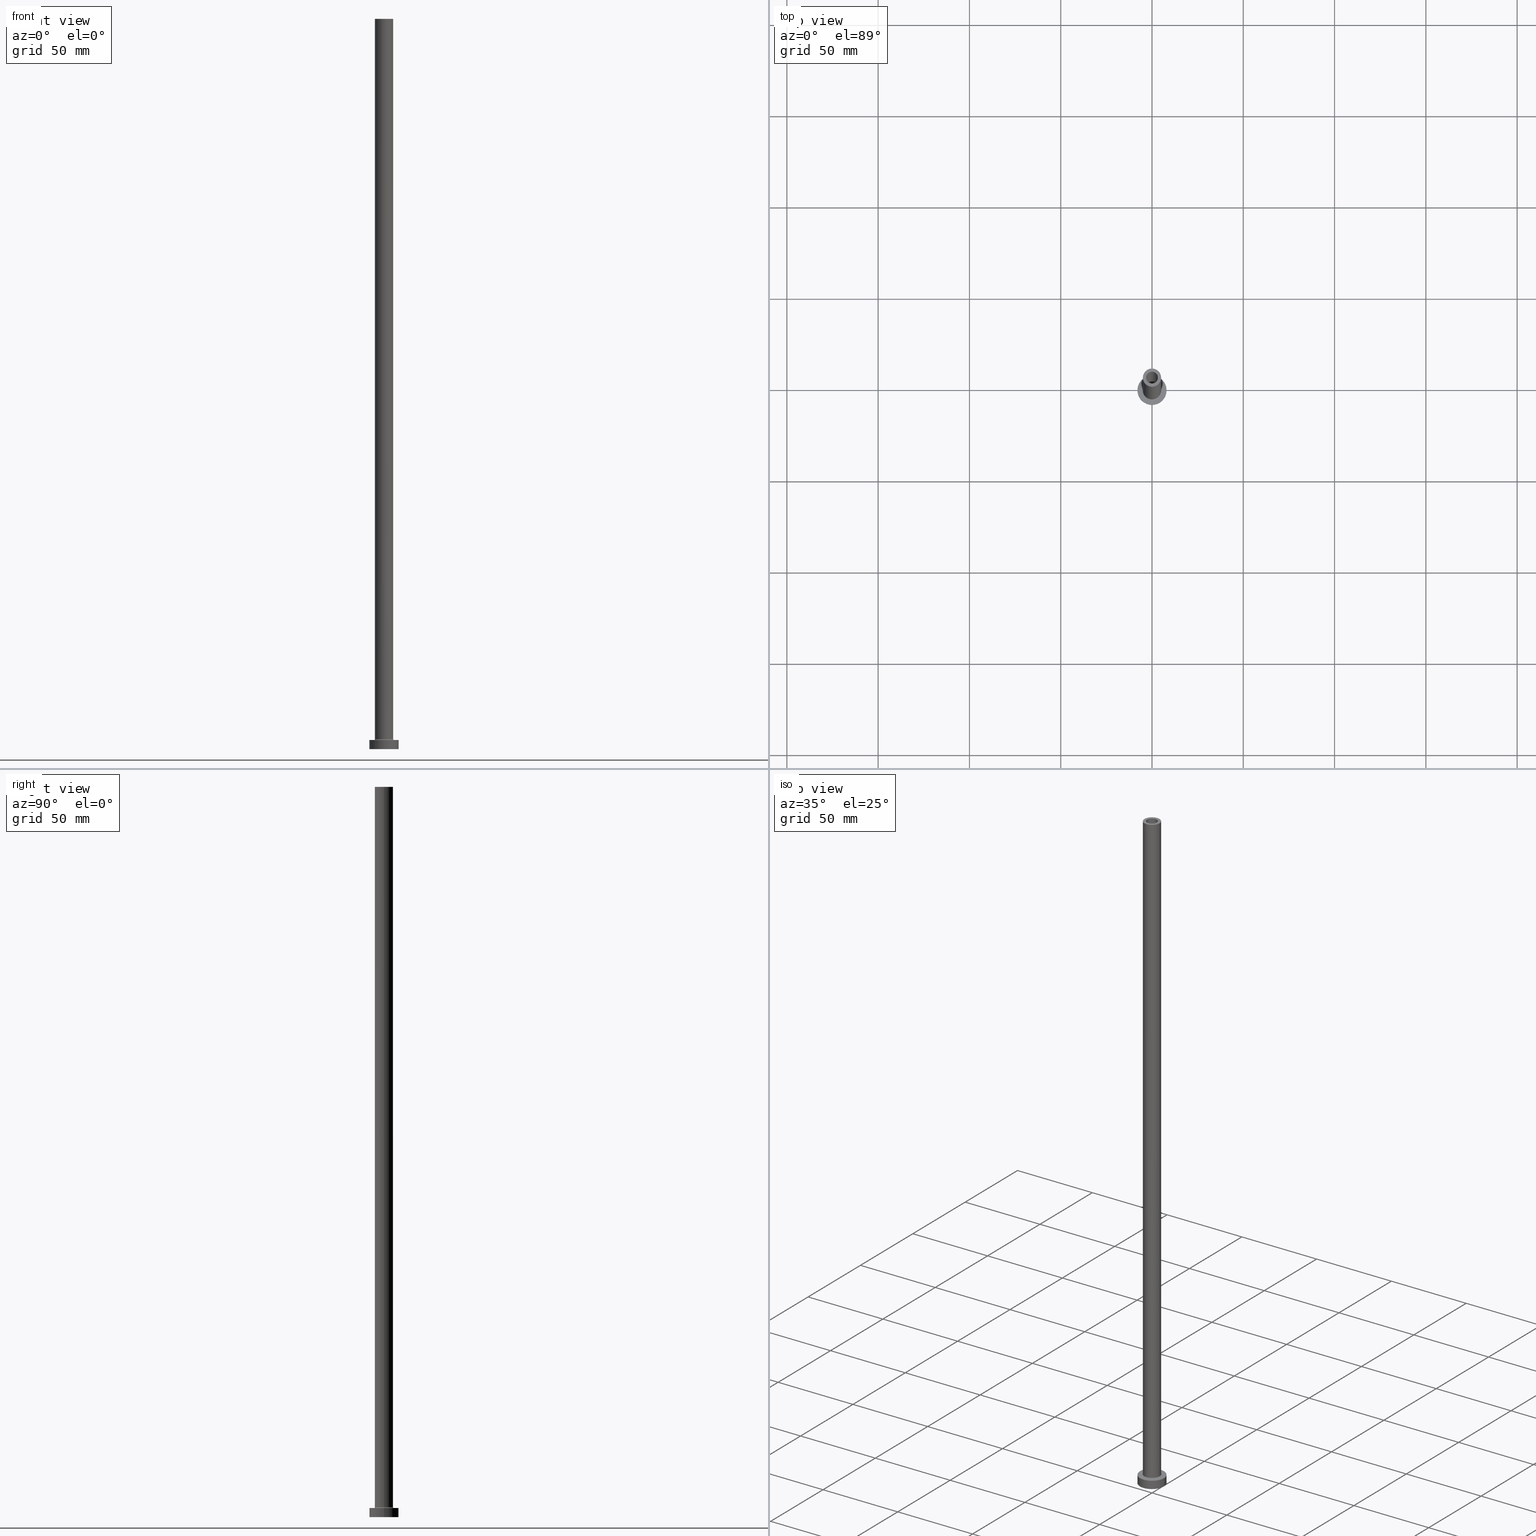
[diagram: canonical four-view strip — front | top / right | iso, engineering-drawing reading convention]
A machine part, canonical four-view strip (front | top / right | iso — engineering-drawing reading convention). The complete STEP part file that produces these views, byte-faithful:
ISO-10303-21;
HEADER;
FILE_DESCRIPTION (( 'STEP AP203' ),
    '1' );
FILE_NAME ('01eb.STEP',
    '2023-02-13T14:01:16',
    ( '' ),
    ( '' ),
    'SwSTEP 2.0',
    'SolidWorks 2019',
    '' );
FILE_SCHEMA (( 'CONFIG_CONTROL_DESIGN' ));
ENDSEC;

DATA;
#1 = CARTESIAN_POINT ( 'NONE',  ( 0.000000000000000000, 0.000000000000000000, 0.000000000000000000 ) ) ;
#2 = AXIS2_PLACEMENT_3D ( 'NONE', #354, #359, #35 ) ;
#3 = VECTOR ( 'NONE', #53, 1000.000000000000000 ) ;
#4 = AXIS2_PLACEMENT_3D ( 'NONE', #100, #396, #430 ) ;
#5 = CARTESIAN_POINT ( 'NONE',  ( 5.500000000000000000, 0.000000000000000000, 5.500000000000005329 ) ) ;
#6 = CARTESIAN_POINT ( 'NONE',  ( -5.000000000000000000, 0.000000000000000000, 400.0000000000000000 ) ) ;
#7 = EDGE_CURVE ( 'NONE', #202, #420, #447, .T. ) ;
#8 = DIRECTION ( 'NONE',  ( 0.000000000000000000, 0.000000000000000000, 1.000000000000000000 ) ) ;
#9 = DIRECTION ( 'NONE',  ( -1.000000000000000000, 0.000000000000000000, 0.000000000000000000 ) ) ;
#10 = CALENDAR_DATE ( 2023, 13, 2 ) ;
#11 = AXIS2_PLACEMENT_3D ( 'NONE', #135, #248, #389 ) ;
#12 = FACE_OUTER_BOUND ( 'NONE', #207, .T. ) ;
#13 = APPROVAL_STATUS ( 'not_yet_approved' ) ;
#14 = DIRECTION ( 'NONE',  ( 1.000000000000000000, 0.000000000000000000, 0.000000000000000000 ) ) ;
#15 = SHAPE_DEFINITION_REPRESENTATION ( #16, #249 ) ;
#16 = PRODUCT_DEFINITION_SHAPE ( 'NONE', 'NONE',  #126 ) ;
#17 = VERTEX_POINT ( 'NONE', #269 ) ;
#18 = EDGE_CURVE ( 'NONE', #275, #97, #455, .T. ) ;
#19 = EDGE_LOOP ( 'NONE', ( #410, #424 ) ) ;
#20 = ORIENTED_EDGE ( 'NONE', *, *, #18, .T. ) ;
#21 = AXIS2_PLACEMENT_3D ( 'NONE', #418, #251, #201 ) ;
#22 = ORIENTED_EDGE ( 'NONE', *, *, #178, .F. ) ;
#23 = EDGE_CURVE ( 'NONE', #300, #55, #258, .T. ) ;
#24 = CARTESIAN_POINT ( 'NONE',  ( 0.000000000000000000, 0.000000000000000000, 400.0000000000000000 ) ) ;
#25 = ORIENTED_EDGE ( 'NONE', *, *, #209, .F. ) ;
#26 = APPROVAL ( #13, 'NEUR�EN�' ) ;
#27 = DIRECTION ( 'NONE',  ( -0.000000000000000000, -0.000000000000000000, -1.000000000000000000 ) ) ;
#28 = ORIENTED_EDGE ( 'NONE', *, *, #431, .F. ) ;
#29 = FACE_BOUND ( 'NONE', #169, .T. ) ;
#30 = AXIS2_PLACEMENT_3D ( 'NONE', #82, #116, #399 ) ;
#31 = ORIENTED_EDGE ( 'NONE', *, *, #18, .F. ) ;
#32 = DIRECTION ( 'NONE',  ( -1.000000000000000000, 0.000000000000000000, 0.000000000000000000 ) ) ;
#33 = CARTESIAN_POINT ( 'NONE',  ( -3.250000000000000444, 0.000000000000000000, 400.0000000000000000 ) ) ;
#34 = ORIENTED_EDGE ( 'NONE', *, *, #305, .T. ) ;
#35 = DIRECTION ( 'NONE',  ( 1.000000000000000000, 0.000000000000000000, 0.000000000000000000 ) ) ;
#36 = DIRECTION ( 'NONE',  ( -1.000000000000000000, 0.000000000000000000, 0.000000000000000000 ) ) ;
#37 = EDGE_CURVE ( 'NONE', #374, #275, #232, .T. ) ;
#38 = AXIS2_PLACEMENT_3D ( 'NONE', #255, #220, #398 ) ;
#39 = DIRECTION ( 'NONE',  ( -0.000000000000000000, -0.000000000000000000, -1.000000000000000000 ) ) ;
#40 = CC_DESIGN_PERSON_AND_ORGANIZATION_ASSIGNMENT ( #184, #109, ( #388 ) ) ;
#41 = CARTESIAN_POINT ( 'NONE',  ( 0.000000000000000000, 0.000000000000000000, 400.0000000000000000 ) ) ;
#42 = CARTESIAN_POINT ( 'NONE',  ( 3.399999999999999911, 4.163799117101000559E-16, 0.000000000000000000 ) ) ;
#43 = AXIS2_PLACEMENT_3D ( 'NONE', #104, #181, #214 ) ;
#44 = PERSON_AND_ORGANIZATION ( #381, #444 ) ;
#45 = CC_DESIGN_APPROVAL ( #328, ( #388 ) ) ;
#46 = ADVANCED_FACE ( 'NONE', ( #51 ), #445, .F. ) ;
#47 = PERSON_AND_ORGANIZATION_ROLE ( 'creator' ) ;
#48 = ADVANCED_FACE ( 'NONE', ( #274 ), #390, .F. ) ;
#49 = SECURITY_CLASSIFICATION_LEVEL ( 'unclassified' ) ;
#50 = AXIS2_PLACEMENT_3D ( 'NONE', #283, #76, #252 ) ;
#51 = FACE_OUTER_BOUND ( 'NONE', #456, .T. ) ;
#52 = APPROVAL_ROLE ( '' ) ;
#53 = DIRECTION ( 'NONE',  ( 0.000000000000000000, 0.000000000000000000, -1.000000000000000000 ) ) ;
#54 = DIRECTION ( 'NONE',  ( 1.000000000000000000, 0.000000000000000000, 0.000000000000000000 ) ) ;
#55 = VERTEX_POINT ( 'NONE', #96 ) ;
#56 = LOCAL_TIME ( 15, 1, 16.00000000000000000, #77 ) ;
#57 = CIRCLE ( 'NONE', #173, 3.250000000000000444 ) ;
#58 = CC_DESIGN_APPROVAL ( #26, ( #222 ) ) ;
#59 = ORIENTED_EDGE ( 'NONE', *, *, #190, .F. ) ;
#60 = ORIENTED_EDGE ( 'NONE', *, *, #311, .T. ) ;
#61 = DIRECTION ( 'NONE',  ( 1.000000000000000000, 0.000000000000000000, 0.000000000000000000 ) ) ;
#62 = LINE ( 'NONE', #247, #83 ) ;
#63 = ORIENTED_EDGE ( 'NONE', *, *, #120, .T. ) ;
#64 = CARTESIAN_POINT ( 'NONE',  ( 0.000000000000000000, 0.000000000000000000, 364.6166522241370558 ) ) ;
#65 = LINE ( 'NONE', #174, #386 ) ;
#66 = ORIENTED_EDGE ( 'NONE', *, *, #67, .T. ) ;
#67 = EDGE_CURVE ( 'NONE', #310, #377, #62, .T. ) ;
#68 = FACE_OUTER_BOUND ( 'NONE', #403, .T. ) ;
#69 = VECTOR ( 'NONE', #452, 1000.000000000000000 ) ;
#70 = VERTEX_POINT ( 'NONE', #288 ) ;
#71 = DIRECTION ( 'NONE',  ( 1.000000000000000000, 0.000000000000000000, -0.000000000000000000 ) ) ;
#72 = DIRECTION ( 'NONE',  ( 0.000000000000000000, -1.000000000000000000, 0.000000000000000000 ) ) ;
#73 = ADVANCED_FACE ( 'NONE', ( #29, #166 ), #429, .T. ) ;
#74 = FACE_OUTER_BOUND ( 'NONE', #378, .T. ) ;
#75 = CIRCLE ( 'NONE', #415, 5.500000000000000000 ) ;
#76 = DIRECTION ( 'NONE',  ( 0.000000000000000000, 0.000000000000000000, 1.000000000000000000 ) ) ;
#77 = COORDINATED_UNIVERSAL_TIME_OFFSET ( 1, 0, .AHEAD. ) ;
#78 = CIRCLE ( 'NONE', #194, 8.000000000000000000 ) ;
#79 = CC_DESIGN_DATE_AND_TIME_ASSIGNMENT ( #441, #404, ( #126 ) ) ;
#80 = COORDINATED_UNIVERSAL_TIME_OFFSET ( 1, 0, .AHEAD. ) ;
#81 = DIRECTION ( 'NONE',  ( -0.000000000000000000, -0.000000000000000000, -1.000000000000000000 ) ) ;
#82 = CARTESIAN_POINT ( 'NONE',  ( 0.000000000000000000, 0.000000000000000000, 0.000000000000000000 ) ) ;
#83 = VECTOR ( 'NONE', #344, 1000.000000000000000 ) ;
#84 = ORIENTED_EDGE ( 'NONE', *, *, #448, .T. ) ;
#85 = CARTESIAN_POINT ( 'NONE',  ( -3.250000000000000444, 0.000000000000000000, 400.0000000000000000 ) ) ;
#86 = ORIENTED_EDGE ( 'NONE', *, *, #23, .F. ) ;
#87 = CARTESIAN_POINT ( 'NONE',  ( 3.399999999999999911, 4.163799117101000559E-16, 355.0000000000000568 ) ) ;
#88 = DIRECTION ( 'NONE',  ( 0.000000000000000000, 0.000000000000000000, 1.000000000000000000 ) ) ;
#89 = CIRCLE ( 'NONE', #401, 0.5000000000000004441 ) ;
#90 = ORIENTED_EDGE ( 'NONE', *, *, #250, .T. ) ;
#91 = VERTEX_POINT ( 'NONE', #33 ) ;
#92 = DIRECTION ( 'NONE',  ( -0.000000000000000000, -0.000000000000000000, -1.000000000000000000 ) ) ;
#93 = EDGE_CURVE ( 'NONE', #458, #70, #98, .T. ) ;
#94 = ORIENTED_EDGE ( 'NONE', *, *, #408, .T. ) ;
#95 = FACE_OUTER_BOUND ( 'NONE', #279, .T. ) ;
#96 = CARTESIAN_POINT ( 'NONE',  ( -8.000000000000000000, 0.000000000000000000, 0.000000000000000000 ) ) ;
#97 = VERTEX_POINT ( 'NONE', #281 ) ;
#98 = CIRCLE ( 'NONE', #205, 5.500000000000000000 ) ;
#99 = DIRECTION ( 'NONE',  ( 1.000000000000000000, 0.000000000000000000, 0.000000000000000000 ) ) ;
#100 = CARTESIAN_POINT ( 'NONE',  ( 0.000000000000000000, 0.000000000000000000, 355.0000000000000568 ) ) ;
#101 = EDGE_CURVE ( 'NONE', #55, #300, #358, .T. ) ;
#102 = DIRECTION ( 'NONE',  ( 1.000000000000000000, 0.000000000000000000, 0.000000000000000000 ) ) ;
#103 = CARTESIAN_POINT ( 'NONE',  ( 0.000000000000000000, 0.000000000000000000, 400.0000000000000000 ) ) ;
#104 = CARTESIAN_POINT ( 'NONE',  ( 0.000000000000000000, 0.000000000000000000, 364.6166522241370558 ) ) ;
#105 = DIRECTION ( 'NONE',  ( 1.000000000000000000, 0.000000000000000000, 0.000000000000000000 ) ) ;
#106 = TOROIDAL_SURFACE ( 'NONE', #439, 5.500000000000000000, 0.5000000000000000000 ) ;
#107 = CARTESIAN_POINT ( 'NONE',  ( 3.250000000000000444, 3.980102097228897245E-16, 355.0000000000000568 ) ) ;
#108 = ADVANCED_FACE ( 'NONE', ( #457 ), #314, .T. ) ;
#109 = PERSON_AND_ORGANIZATION_ROLE ( 'design_supplier' ) ;
#110 = CARTESIAN_POINT ( 'NONE',  ( 8.000000000000000000, 9.797174393178825657E-16, 5.000000000000000000 ) ) ;
#111 = AXIS2_PLACEMENT_3D ( 'NONE', #240, #312, #393 ) ;
#112 = APPROVAL_DATE_TIME ( #264, #346 ) ;
#113 = LOCAL_TIME ( 15, 1, 16.00000000000000000, #80 ) ;
#114 = APPROVAL_STATUS ( 'not_yet_approved' ) ;
#115 = ORIENTED_EDGE ( 'NONE', *, *, #448, .F. ) ;
#116 = DIRECTION ( 'NONE',  ( 0.000000000000000000, 0.000000000000000000, 1.000000000000000000 ) ) ;
#117 = ORIENTED_EDGE ( 'NONE', *, *, #23, .T. ) ;
#118 = LOCAL_TIME ( 15, 1, 16.00000000000000000, #438 ) ;
#119 = ORIENTED_EDGE ( 'NONE', *, *, #93, .F. ) ;
#120 = EDGE_CURVE ( 'NONE', #97, #70, #89, .T. ) ;
#121 = CARTESIAN_POINT ( 'NONE',  ( 0.000000000000000000, 0.000000000000000000, 5.500000000000005329 ) ) ;
#122 = DIRECTION ( 'NONE',  ( 0.000000000000000000, 0.000000000000000000, 1.000000000000000000 ) ) ;
#123 = ORIENTED_EDGE ( 'NONE', *, *, #364, .F. ) ;
#124 = ORIENTED_EDGE ( 'NONE', *, *, #278, .T. ) ;
#125 = FACE_OUTER_BOUND ( 'NONE', #187, .T. ) ;
#126 = PRODUCT_DEFINITION ( 'NEZN�M�', '', #388, #239 ) ;
#127 = AXIS2_PLACEMENT_3D ( 'NONE', #427, #27, #36 ) ;
#128 = CARTESIAN_POINT ( 'NONE',  ( 0.000000000000000000, 0.000000000000000000, 355.0000000000000568 ) ) ;
#129 = ORIENTED_EDGE ( 'NONE', *, *, #317, .F. ) ;
#130 = DIRECTION ( 'NONE',  ( 1.000000000000000000, 0.000000000000000000, 0.000000000000000000 ) ) ;
#131 = DIRECTION ( 'NONE',  ( 1.224646799147353207E-16, 1.000000000000000000, -0.000000000000000000 ) ) ;
#132 = ORIENTED_EDGE ( 'NONE', *, *, #7, .F. ) ;
#133 = DIRECTION ( 'NONE',  ( 0.000000000000000000, 0.000000000000000000, 1.000000000000000000 ) ) ;
#134 = CARTESIAN_POINT ( 'NONE',  ( 0.000000000000000000, 0.000000000000000000, 5.500000000000005329 ) ) ;
#135 = CARTESIAN_POINT ( 'NONE',  ( 0.000000000000000000, 0.000000000000000000, 5.000000000000000000 ) ) ;
#136 = AXIS2_PLACEMENT_3D ( 'NONE', #128, #454, #382 ) ;
#137 = DIRECTION ( 'NONE',  ( -0.000000000000000000, -0.000000000000000000, -1.000000000000000000 ) ) ;
#138 = ADVANCED_FACE ( 'NONE', ( #308, #237 ), #285, .F. ) ;
#139 = CYLINDRICAL_SURFACE ( 'NONE', #43, 3.399999999999999911 ) ;
#140 = FACE_OUTER_BOUND ( 'NONE', #238, .T. ) ;
#141 = CARTESIAN_POINT ( 'NONE',  ( 0.000000000000000000, 0.000000000000000000, 400.0000000000000000 ) ) ;
#142 = EDGE_CURVE ( 'NONE', #154, #97, #65, .T. ) ;
#143 = AXIS2_PLACEMENT_3D ( 'NONE', #245, #210, #355 ) ;
#144 = CIRCLE ( 'NONE', #197, 5.000000000000000000 ) ;
#145 = COORDINATED_UNIVERSAL_TIME_OFFSET ( 1, 0, .AHEAD. ) ;
#146 = DATE_AND_TIME ( #296, #183 ) ;
#147 = LINE ( 'NONE', #110, #155 ) ;
#148 = TOROIDAL_SURFACE ( 'NONE', #221, 5.500000000000000000, 0.5000000000000000000 ) ;
#149 = CC_DESIGN_APPROVAL ( #346, ( #126 ) ) ;
#150 = CARTESIAN_POINT ( 'NONE',  ( 3.250000000000000444, 3.980102097228897245E-16, 400.0000000000000000 ) ) ;
#151 = APPROVAL_STATUS ( 'not_yet_approved' ) ;
#152 = ORIENTED_EDGE ( 'NONE', *, *, #373, .T. ) ;
#153 = PLANE ( 'NONE',  #38 ) ;
#154 = VERTEX_POINT ( 'NONE', #168 ) ;
#155 = VECTOR ( 'NONE', #265, 1000.000000000000000 ) ;
#156 = AXIS2_PLACEMENT_3D ( 'NONE', #41, #428, #326 ) ;
#157 = ORIENTED_EDGE ( 'NONE', *, *, #364, .T. ) ;
#158 = CARTESIAN_POINT ( 'NONE',  ( 0.000000000000000000, 0.000000000000000000, 5.000000000000000000 ) ) ;
#159 = ORIENTED_EDGE ( 'NONE', *, *, #311, .F. ) ;
#160 = ORIENTED_EDGE ( 'NONE', *, *, #37, .T. ) ;
#161 = CARTESIAN_POINT ( 'NONE',  ( -8.000000000000000000, 0.000000000000000000, 5.000000000000000000 ) ) ;
#162 = DIRECTION ( 'NONE',  ( 0.000000000000000000, 0.000000000000000000, -1.000000000000000000 ) ) ;
#163 = ORIENTED_EDGE ( 'NONE', *, *, #142, .T. ) ;
#164 = DIRECTION ( 'NONE',  ( 0.000000000000000000, 0.000000000000000000, -1.000000000000000000 ) ) ;
#165 = AXIS2_PLACEMENT_3D ( 'NONE', #24, #337, #446 ) ;
#166 = FACE_OUTER_BOUND ( 'NONE', #266, .T. ) ;
#167 = CARTESIAN_POINT ( 'NONE',  ( 0.000000000000000000, 0.000000000000000000, 5.500000000000005329 ) ) ;
#168 = CARTESIAN_POINT ( 'NONE',  ( 5.000000000000000000, 6.123233995736765296E-16, 400.0000000000000000 ) ) ;
#169 = EDGE_LOOP ( 'NONE', ( #235, #198 ) ) ;
#170 = CYLINDRICAL_SURFACE ( 'NONE', #11, 8.000000000000000000 ) ;
#171 = CARTESIAN_POINT ( 'NONE',  ( -3.250000000000000444, 0.000000000000000000, 355.0000000000000568 ) ) ;
#172 = CARTESIAN_POINT ( 'NONE',  ( 0.000000000000000000, 0.000000000000000000, 0.000000000000000000 ) ) ;
#173 = AXIS2_PLACEMENT_3D ( 'NONE', #268, #375, #130 ) ;
#174 = CARTESIAN_POINT ( 'NONE',  ( 5.000000000000000000, 6.123233995736765296E-16, 400.0000000000000000 ) ) ;
#175 = CIRCLE ( 'NONE', #156, 5.000000000000000000 ) ;
#176 = CYLINDRICAL_SURFACE ( 'NONE', #320, 5.000000000000000000 ) ;
#177 = CARTESIAN_POINT ( 'NONE',  ( 0.000000000000000000, 0.000000000000000000, 5.000000000000000000 ) ) ;
#178 = EDGE_CURVE ( 'NONE', #275, #458, #349, .T. ) ;
#179 =( NAMED_UNIT ( * ) PLANE_ANGLE_UNIT ( ) SI_UNIT ( $, .RADIAN. ) );
#180 = PRODUCT_RELATED_PRODUCT_CATEGORY ( 'detail', '', ( #301 ) ) ;
#181 = DIRECTION ( 'NONE',  ( 0.000000000000000000, 0.000000000000000000, -1.000000000000000000 ) ) ;
#182 = CIRCLE ( 'NONE', #253, 3.399999999999999911 ) ;
#183 = LOCAL_TIME ( 15, 1, 16.00000000000000000, #225 ) ;
#184 = PERSON_AND_ORGANIZATION ( #381, #444 ) ;
#185 = ADVANCED_FACE ( 'NONE', ( #68 ), #148, .F. ) ;
#186 = PERSON_AND_ORGANIZATION ( #381, #444 ) ;
#187 = EDGE_LOOP ( 'NONE', ( #313, #450, #338, #345 ) ) ;
#188 = DIRECTION ( 'NONE',  ( 1.000000000000000000, 0.000000000000000000, 0.000000000000000000 ) ) ;
#189 = PERSON_AND_ORGANIZATION ( #381, #444 ) ;
#190 = EDGE_CURVE ( 'NONE', #310, #407, #394, .T. ) ;
#191 = LINE ( 'NONE', #371, #3 ) ;
#192 = CARTESIAN_POINT ( 'NONE',  ( -5.000000000000000000, 0.000000000000000000, 400.0000000000000000 ) ) ;
#193 = EDGE_LOOP ( 'NONE', ( #387, #163, #157, #413 ) ) ;
#194 = AXIS2_PLACEMENT_3D ( 'NONE', #177, #133, #290 ) ;
#195 = AXIS2_PLACEMENT_3D ( 'NONE', #1, #137, #102 ) ;
#196 = FACE_OUTER_BOUND ( 'NONE', #333, .T. ) ;
#197 = AXIS2_PLACEMENT_3D ( 'NONE', #103, #322, #208 ) ;
#198 = ORIENTED_EDGE ( 'NONE', *, *, #93, .T. ) ;
#199 = CC_DESIGN_PERSON_AND_ORGANIZATION_ASSIGNMENT ( #365, #295, ( #301 ) ) ;
#200 = VERTEX_POINT ( 'NONE', #171 ) ;
#201 = DIRECTION ( 'NONE',  ( 1.000000000000000000, 0.000000000000000000, 0.000000000000000000 ) ) ;
#202 = VERTEX_POINT ( 'NONE', #316 ) ;
#203 = CARTESIAN_POINT ( 'NONE',  ( -5.000000000000000000, 0.000000000000000000, 5.500000000000005329 ) ) ;
#204 = DIRECTION ( 'NONE',  ( -0.000000000000000000, -0.000000000000000000, -1.000000000000000000 ) ) ;
#205 = AXIS2_PLACEMENT_3D ( 'NONE', #385, #92, #353 ) ;
#206 = CIRCLE ( 'NONE', #4, 3.250000000000000444 ) ;
#207 = EDGE_LOOP ( 'NONE', ( #391, #86 ) ) ;
#208 = DIRECTION ( 'NONE',  ( 1.000000000000000000, 0.000000000000000000, 0.000000000000000000 ) ) ;
#209 = EDGE_CURVE ( 'NONE', #271, #377, #362, .T. ) ;
#210 = DIRECTION ( 'NONE',  ( 0.000000000000000000, 0.000000000000000000, 1.000000000000000000 ) ) ;
#211 = DIRECTION ( 'NONE',  ( -1.000000000000000000, 0.000000000000000000, 0.000000000000000000 ) ) ;
#212 = CARTESIAN_POINT ( 'NONE',  ( -5.500000000000000000, 6.735557395310442023E-16, 5.000000000000002665 ) ) ;
#213 = VECTOR ( 'NONE', #230, 1000.000000000000000 ) ;
#214 = DIRECTION ( 'NONE',  ( -1.000000000000000000, 0.000000000000000000, 0.000000000000000000 ) ) ;
#215 = CIRCLE ( 'NONE', #329, 3.399999999999999911 ) ;
#216 = ADVANCED_FACE ( 'NONE', ( #74 ), #139, .F. ) ;
#217 = APPLICATION_PROTOCOL_DEFINITION ( 'international standard', 'config_control_design', 1994, #256 ) ;
#218 = DIRECTION ( 'NONE',  ( -0.000000000000000000, -0.000000000000000000, -1.000000000000000000 ) ) ;
#219 = APPROVAL_ROLE ( '' ) ;
#220 = DIRECTION ( 'NONE',  ( 0.000000000000000000, 0.000000000000000000, 1.000000000000000000 ) ) ;
#221 = AXIS2_PLACEMENT_3D ( 'NONE', #134, #422, #99 ) ;
#222 = SECURITY_CLASSIFICATION ( '', '', #49 ) ;
#223 = EDGE_CURVE ( 'NONE', #407, #310, #182, .T. ) ;
#224 = CALENDAR_DATE ( 2023, 13, 2 ) ;
#225 = COORDINATED_UNIVERSAL_TIME_OFFSET ( 1, 0, .AHEAD. ) ;
#226 = ORIENTED_EDGE ( 'NONE', *, *, #178, .T. ) ;
#227 = ADVANCED_FACE ( 'NONE', ( #325, #12 ), #153, .F. ) ;
#228 =( GEOMETRIC_REPRESENTATION_CONTEXT ( 3 ) GLOBAL_UNCERTAINTY_ASSIGNED_CONTEXT ( ( #352 ) ) GLOBAL_UNIT_ASSIGNED_CONTEXT ( ( #360, #179, #356 ) ) REPRESENTATION_CONTEXT ( 'NONE', 'WORKASPACE' ) );
#229 = EDGE_LOOP ( 'NONE', ( #236, #59 ) ) ;
#230 = DIRECTION ( 'NONE',  ( 0.000000000000000000, 0.000000000000000000, -1.000000000000000000 ) ) ;
#231 = ORIENTED_EDGE ( 'NONE', *, *, #431, .T. ) ;
#232 = LINE ( 'NONE', #192, #453 ) ;
#233 = ORIENTED_EDGE ( 'NONE', *, *, #223, .T. ) ;
#234 = AXIS2_PLACEMENT_3D ( 'NONE', #276, #306, #32 ) ;
#235 = ORIENTED_EDGE ( 'NONE', *, *, #395, .T. ) ;
#236 = ORIENTED_EDGE ( 'NONE', *, *, #223, .F. ) ;
#237 = FACE_OUTER_BOUND ( 'NONE', #229, .T. ) ;
#238 = EDGE_LOOP ( 'NONE', ( #159, #90, #117, #129 ) ) ;
#239 = DESIGN_CONTEXT ( 'detailed design', #419, 'design' ) ;
#240 = CARTESIAN_POINT ( 'NONE',  ( 0.000000000000000000, 0.000000000000000000, 5.000000000000000000 ) ) ;
#241 = EDGE_LOOP ( 'NONE', ( #25, #28 ) ) ;
#242 = CC_DESIGN_PERSON_AND_ORGANIZATION_ASSIGNMENT ( #363, #402, ( #388 ) ) ;
#243 = CARTESIAN_POINT ( 'NONE',  ( -3.399999999999999911, 0.000000000000000000, 355.0000000000000568 ) ) ;
#244 = APPROVAL_PERSON_ORGANIZATION ( #189, #346, #366 ) ;
#245 = CARTESIAN_POINT ( 'NONE',  ( 0.000000000000000000, 0.000000000000000000, 355.0000000000000568 ) ) ;
#246 = ORIENTED_EDGE ( 'NONE', *, *, #120, .F. ) ;
#247 = CARTESIAN_POINT ( 'NONE',  ( 3.399999999999999911, 4.163799117101000559E-16, 364.6166522241370558 ) ) ;
#248 = DIRECTION ( 'NONE',  ( -0.000000000000000000, -0.000000000000000000, -1.000000000000000000 ) ) ;
#249 = ADVANCED_BREP_SHAPE_REPRESENTATION ( '01eb', ( #437, #30 ), #228 ) ;
#250 = EDGE_CURVE ( 'NONE', #17, #300, #147, .T. ) ;
#251 = DIRECTION ( 'NONE',  ( 0.000000000000000000, 0.000000000000000000, 1.000000000000000000 ) ) ;
#252 = DIRECTION ( 'NONE',  ( 1.000000000000000000, 0.000000000000000000, 0.000000000000000000 ) ) ;
#253 = AXIS2_PLACEMENT_3D ( 'NONE', #323, #8, #14 ) ;
#254 = PLANE ( 'NONE',  #267 ) ;
#255 = CARTESIAN_POINT ( 'NONE',  ( 0.000000000000000000, 0.000000000000000000, 0.000000000000000000 ) ) ;
#256 = APPLICATION_CONTEXT ( 'configuration controlled 3d designs of mechanical parts and assemblies' ) ;
#257 = APPROVAL_PERSON_ORGANIZATION ( #435, #328, #219 ) ;
#258 = CIRCLE ( 'NONE', #339, 8.000000000000000000 ) ;
#259 = LOCAL_TIME ( 15, 1, 16.00000000000000000, #145 ) ;
#260 = CALENDAR_DATE ( 2023, 13, 2 ) ;
#261 = APPROVAL_DATE_TIME ( #436, #328 ) ;
#262 = EDGE_CURVE ( 'NONE', #407, #271, #191, .T. ) ;
#263 = ORIENTED_EDGE ( 'NONE', *, *, #442, .T. ) ;
#264 = DATE_AND_TIME ( #10, #118 ) ;
#265 = DIRECTION ( 'NONE',  ( -0.000000000000000000, -0.000000000000000000, -1.000000000000000000 ) ) ;
#266 = EDGE_LOOP ( 'NONE', ( #152, #60 ) ) ;
#267 = AXIS2_PLACEMENT_3D ( 'NONE', #319, #421, #71 ) ;
#268 = CARTESIAN_POINT ( 'NONE',  ( 0.000000000000000000, 0.000000000000000000, 400.0000000000000000 ) ) ;
#269 = CARTESIAN_POINT ( 'NONE',  ( 8.000000000000000000, 9.797174393178825657E-16, 5.000000000000000000 ) ) ;
#270 = DIRECTION ( 'NONE',  ( 0.000000000000000000, 0.000000000000000000, 1.000000000000000000 ) ) ;
#271 = VERTEX_POINT ( 'NONE', #340 ) ;
#272 = CIRCLE ( 'NONE', #165, 3.250000000000000444 ) ;
#273 = DIRECTION ( 'NONE',  ( 1.000000000000000000, 0.000000000000000000, 0.000000000000000000 ) ) ;
#274 = FACE_OUTER_BOUND ( 'NONE', #341, .T. ) ;
#275 = VERTEX_POINT ( 'NONE', #203 ) ;
#276 = CARTESIAN_POINT ( 'NONE',  ( 0.000000000000000000, 0.000000000000000000, 5.000000000000000000 ) ) ;
#277 = DIRECTION ( 'NONE',  ( -1.000000000000000000, 0.000000000000000000, 0.000000000000000000 ) ) ;
#278 = EDGE_CURVE ( 'NONE', #91, #202, #57, .T. ) ;
#279 = EDGE_LOOP ( 'NONE', ( #22, #123, #63, #119 ) ) ;
#280 = FACE_OUTER_BOUND ( 'NONE', #443, .T. ) ;
#281 = CARTESIAN_POINT ( 'NONE',  ( 5.000000000000000000, 6.123233995736765296E-16, 5.500000000000005329 ) ) ;
#282 = VERTEX_POINT ( 'NONE', #384 ) ;
#283 = CARTESIAN_POINT ( 'NONE',  ( 0.000000000000000000, 0.000000000000000000, 355.0000000000000568 ) ) ;
#284 = CIRCLE ( 'NONE', #2, 5.000000000000000000 ) ;
#285 = PLANE ( 'NONE',  #136 ) ;
#286 = FACE_OUTER_BOUND ( 'NONE', #304, .T. ) ;
#287 = ADVANCED_FACE ( 'NONE', ( #196 ), #351, .T. ) ;
#288 = CARTESIAN_POINT ( 'NONE',  ( 5.500000000000000000, 0.000000000000000000, 5.000000000000002665 ) ) ;
#289 = DIRECTION ( 'NONE',  ( 1.000000000000000000, 0.000000000000000000, 0.000000000000000000 ) ) ;
#290 = DIRECTION ( 'NONE',  ( 1.000000000000000000, 0.000000000000000000, 0.000000000000000000 ) ) ;
#291 = CALENDAR_DATE ( 2023, 13, 2 ) ;
#292 = ADVANCED_FACE ( 'NONE', ( #95 ), #106, .F. ) ;
#293 = APPROVAL_DATE_TIME ( #146, #26 ) ;
#294 = CC_DESIGN_PERSON_AND_ORGANIZATION_ASSIGNMENT ( #186, #397, ( #222 ) ) ;
#295 = PERSON_AND_ORGANIZATION_ROLE ( 'design_owner' ) ;
#296 = CALENDAR_DATE ( 2023, 13, 2 ) ;
#297 = EDGE_CURVE ( 'NONE', #91, #200, #449, .T. ) ;
#298 = DIRECTION ( 'NONE',  ( 0.000000000000000000, 0.000000000000000000, -1.000000000000000000 ) ) ;
#299 = APPLICATION_PROTOCOL_DEFINITION ( 'international standard', 'config_control_design', 1994, #419 ) ;
#300 = VERTEX_POINT ( 'NONE', #347 ) ;
#301 = PRODUCT ( '01eb', '01eb', '', ( #334 ) ) ;
#302 = DIRECTION ( 'NONE',  ( 0.000000000000000000, 0.000000000000000000, -1.000000000000000000 ) ) ;
#303 = CC_DESIGN_SECURITY_CLASSIFICATION ( #222, ( #388 ) ) ;
#304 = EDGE_LOOP ( 'NONE', ( #342, #460, #160, #20 ) ) ;
#305 = EDGE_CURVE ( 'NONE', #202, #91, #272, .T. ) ;
#306 = DIRECTION ( 'NONE',  ( -0.000000000000000000, -0.000000000000000000, -1.000000000000000000 ) ) ;
#307 = ORIENTED_EDGE ( 'NONE', *, *, #361, .T. ) ;
#308 = FACE_BOUND ( 'NONE', #350, .T. ) ;
#309 = AXIS2_PLACEMENT_3D ( 'NONE', #121, #270, #54 ) ;
#310 = VERTEX_POINT ( 'NONE', #87 ) ;
#311 = EDGE_CURVE ( 'NONE', #17, #282, #432, .T. ) ;
#312 = DIRECTION ( 'NONE',  ( 0.000000000000000000, 0.000000000000000000, 1.000000000000000000 ) ) ;
#313 = ORIENTED_EDGE ( 'NONE', *, *, #67, .F. ) ;
#314 = CYLINDRICAL_SURFACE ( 'NONE', #127, 5.000000000000000000 ) ;
#315 = ORIENTED_EDGE ( 'NONE', *, *, #373, .F. ) ;
#316 = CARTESIAN_POINT ( 'NONE',  ( 3.250000000000000444, 3.980102097228897245E-16, 400.0000000000000000 ) ) ;
#317 = EDGE_CURVE ( 'NONE', #282, #55, #343, .T. ) ;
#318 = CIRCLE ( 'NONE', #50, 3.250000000000000444 ) ;
#319 = CARTESIAN_POINT ( 'NONE',  ( 0.000000000000000000, 0.000000000000000000, 400.0000000000000000 ) ) ;
#320 = AXIS2_PLACEMENT_3D ( 'NONE', #141, #39, #433 ) ;
#321 = CARTESIAN_POINT ( 'NONE',  ( 0.000000000000000000, 0.000000000000000000, 400.0000000000000000 ) ) ;
#322 = DIRECTION ( 'NONE',  ( 0.000000000000000000, 0.000000000000000000, 1.000000000000000000 ) ) ;
#323 = CARTESIAN_POINT ( 'NONE',  ( 0.000000000000000000, 0.000000000000000000, 355.0000000000000568 ) ) ;
#324 = FACE_BOUND ( 'NONE', #19, .T. ) ;
#325 = FACE_BOUND ( 'NONE', #241, .T. ) ;
#326 = DIRECTION ( 'NONE',  ( 1.000000000000000000, 0.000000000000000000, 0.000000000000000000 ) ) ;
#327 = AXIS2_PLACEMENT_3D ( 'NONE', #321, #357, #211 ) ;
#328 = APPROVAL ( #151, 'NEUR�EN�' ) ;
#329 = AXIS2_PLACEMENT_3D ( 'NONE', #172, #218, #289 ) ;
#330 = PERSON_AND_ORGANIZATION ( #381, #444 ) ;
#331 = DATE_AND_TIME ( #260, #56 ) ;
#332 = ADVANCED_FACE ( 'NONE', ( #125 ), #417, .F. ) ;
#333 = EDGE_LOOP ( 'NONE', ( #451, #315, #380, #336 ) ) ;
#334 = MECHANICAL_CONTEXT ( 'NONE', #256, 'mechanical' ) ;
#335 = ORIENTED_EDGE ( 'NONE', *, *, #297, .T. ) ;
#336 = ORIENTED_EDGE ( 'NONE', *, *, #101, .T. ) ;
#337 = DIRECTION ( 'NONE',  ( 0.000000000000000000, 0.000000000000000000, 1.000000000000000000 ) ) ;
#338 = ORIENTED_EDGE ( 'NONE', *, *, #262, .T. ) ;
#339 = AXIS2_PLACEMENT_3D ( 'NONE', #440, #88, #188 ) ;
#340 = CARTESIAN_POINT ( 'NONE',  ( -3.399999999999999911, 0.000000000000000000, 0.000000000000000000 ) ) ;
#341 = EDGE_LOOP ( 'NONE', ( #132, #34, #335, #416 ) ) ;
#342 = ORIENTED_EDGE ( 'NONE', *, *, #142, .F. ) ;
#343 = LINE ( 'NONE', #161, #69 ) ;
#344 = DIRECTION ( 'NONE',  ( 0.000000000000000000, 0.000000000000000000, -1.000000000000000000 ) ) ;
#345 = ORIENTED_EDGE ( 'NONE', *, *, #209, .T. ) ;
#346 = APPROVAL ( #114, 'NEUR�EN�' ) ;
#347 = CARTESIAN_POINT ( 'NONE',  ( 8.000000000000000000, 9.797174393178825657E-16, 0.000000000000000000 ) ) ;
#348 = CARTESIAN_POINT ( 'NONE',  ( -5.500000000000000000, 6.735557395310442023E-16, 5.500000000000005329 ) ) ;
#349 = CIRCLE ( 'NONE', #367, 0.5000000000000004441 ) ;
#350 = EDGE_LOOP ( 'NONE', ( #84, #263 ) ) ;
#351 = CYLINDRICAL_SURFACE ( 'NONE', #234, 8.000000000000000000 ) ;
#352 = UNCERTAINTY_MEASURE_WITH_UNIT (LENGTH_MEASURE( 1.000000000000000082E-05 ), #360, 'distance_accuracy_value', 'NONE');
#353 = DIRECTION ( 'NONE',  ( 1.000000000000000000, 0.000000000000000000, 0.000000000000000000 ) ) ;
#354 = CARTESIAN_POINT ( 'NONE',  ( 0.000000000000000000, 0.000000000000000000, 5.500000000000005329 ) ) ;
#355 = DIRECTION ( 'NONE',  ( 1.000000000000000000, 0.000000000000000000, 0.000000000000000000 ) ) ;
#356 =( NAMED_UNIT ( * ) SI_UNIT ( $, .STERADIAN. ) SOLID_ANGLE_UNIT ( ) );
#357 = DIRECTION ( 'NONE',  ( 0.000000000000000000, 0.000000000000000000, -1.000000000000000000 ) ) ;
#358 = CIRCLE ( 'NONE', #21, 8.000000000000000000 ) ;
#359 = DIRECTION ( 'NONE',  ( 0.000000000000000000, 0.000000000000000000, 1.000000000000000000 ) ) ;
#360 =( LENGTH_UNIT ( ) NAMED_UNIT ( * ) SI_UNIT ( .MILLI., .METRE. ) );
#361 = EDGE_CURVE ( 'NONE', #154, #374, #175, .T. ) ;
#362 = CIRCLE ( 'NONE', #195, 3.399999999999999911 ) ;
#363 = PERSON_AND_ORGANIZATION ( #381, #444 ) ;
#364 = EDGE_CURVE ( 'NONE', #97, #275, #284, .T. ) ;
#365 = PERSON_AND_ORGANIZATION ( #381, #444 ) ;
#366 = APPROVAL_ROLE ( '' ) ;
#367 = AXIS2_PLACEMENT_3D ( 'NONE', #348, #131, #459 ) ;
#368 = APPROVAL_PERSON_ORGANIZATION ( #330, #26, #52 ) ;
#369 = ORIENTED_EDGE ( 'NONE', *, *, #7, .T. ) ;
#370 = DATE_TIME_ROLE ( 'classification_date' ) ;
#371 = CARTESIAN_POINT ( 'NONE',  ( -3.399999999999999911, 0.000000000000000000, 364.6166522241370558 ) ) ;
#372 = ORIENTED_EDGE ( 'NONE', *, *, #262, .F. ) ;
#373 = EDGE_CURVE ( 'NONE', #282, #17, #78, .T. ) ;
#374 = VERTEX_POINT ( 'NONE', #6 ) ;
#375 = DIRECTION ( 'NONE',  ( 0.000000000000000000, 0.000000000000000000, 1.000000000000000000 ) ) ;
#376 = CARTESIAN_POINT ( 'NONE',  ( 0.000000000000000000, 0.000000000000000000, 400.0000000000000000 ) ) ;
#377 = VERTEX_POINT ( 'NONE', #42 ) ;
#378 = EDGE_LOOP ( 'NONE', ( #233, #66, #231, #372 ) ) ;
#379 = ADVANCED_FACE ( 'NONE', ( #324, #280 ), #254, .T. ) ;
#380 = ORIENTED_EDGE ( 'NONE', *, *, #317, .T. ) ;
#381 = PERSON ( 'NEUR�EN�', 'NEUR�EN�', 'NEUR�EN�', ('NEUR�EN�'), ('NEUR�EN�'), ('NEUR�EN�') ) ;
#382 = DIRECTION ( 'NONE',  ( 1.000000000000000000, 0.000000000000000000, -0.000000000000000000 ) ) ;
#383 = ORIENTED_EDGE ( 'NONE', *, *, #395, .F. ) ;
#384 = CARTESIAN_POINT ( 'NONE',  ( -8.000000000000000000, 0.000000000000000000, 5.000000000000000000 ) ) ;
#385 = CARTESIAN_POINT ( 'NONE',  ( 0.000000000000000000, 0.000000000000000000, 5.000000000000000000 ) ) ;
#386 = VECTOR ( 'NONE', #204, 1000.000000000000000 ) ;
#387 = ORIENTED_EDGE ( 'NONE', *, *, #361, .F. ) ;
#388 = PRODUCT_DEFINITION_FORMATION_WITH_SPECIFIED_SOURCE ( 'LIBOVOLN�', '', #301, .NOT_KNOWN. ) ;
#389 = DIRECTION ( 'NONE',  ( -1.000000000000000000, 0.000000000000000000, 0.000000000000000000 ) ) ;
#390 = CYLINDRICAL_SURFACE ( 'NONE', #327, 3.250000000000000444 ) ;
#391 = ORIENTED_EDGE ( 'NONE', *, *, #101, .F. ) ;
#392 = DIRECTION ( 'NONE',  ( -0.000000000000000000, -0.000000000000000000, -1.000000000000000000 ) ) ;
#393 = DIRECTION ( 'NONE',  ( 1.000000000000000000, 0.000000000000000000, -0.000000000000000000 ) ) ;
#394 = CIRCLE ( 'NONE', #143, 3.399999999999999911 ) ;
#395 = EDGE_CURVE ( 'NONE', #70, #458, #75, .T. ) ;
#396 = DIRECTION ( 'NONE',  ( 0.000000000000000000, 0.000000000000000000, 1.000000000000000000 ) ) ;
#397 = PERSON_AND_ORGANIZATION_ROLE ( 'classification_officer' ) ;
#398 = DIRECTION ( 'NONE',  ( 1.000000000000000000, 0.000000000000000000, -0.000000000000000000 ) ) ;
#399 = DIRECTION ( 'NONE',  ( 1.000000000000000000, 0.000000000000000000, 0.000000000000000000 ) ) ;
#400 = ADVANCED_FACE ( 'NONE', ( #286 ), #176, .T. ) ;
#401 = AXIS2_PLACEMENT_3D ( 'NONE', #5, #72, #162 ) ;
#402 = PERSON_AND_ORGANIZATION_ROLE ( 'creator' ) ;
#403 = EDGE_LOOP ( 'NONE', ( #31, #226, #383, #246 ) ) ;
#404 = DATE_TIME_ROLE ( 'creation_date' ) ;
#405 = CLOSED_SHELL ( 'NONE', ( #46, #216, #185, #108, #425, #287, #73, #227, #400, #379, #292, #332, #138, #48 ) ) ;
#406 = AXIS2_PLACEMENT_3D ( 'NONE', #64, #164, #9 ) ;
#407 = VERTEX_POINT ( 'NONE', #243 ) ;
#408 = EDGE_CURVE ( 'NONE', #374, #154, #144, .T. ) ;
#409 = DIRECTION ( 'NONE',  ( 0.000000000000000000, 0.000000000000000000, 1.000000000000000000 ) ) ;
#410 = ORIENTED_EDGE ( 'NONE', *, *, #278, .F. ) ;
#411 = ORIENTED_EDGE ( 'NONE', *, *, #297, .F. ) ;
#412 = CC_DESIGN_PERSON_AND_ORGANIZATION_ASSIGNMENT ( #44, #47, ( #126 ) ) ;
#413 = ORIENTED_EDGE ( 'NONE', *, *, #37, .F. ) ;
#414 = VECTOR ( 'NONE', #298, 1000.000000000000000 ) ;
#415 = AXIS2_PLACEMENT_3D ( 'NONE', #461, #392, #105 ) ;
#416 = ORIENTED_EDGE ( 'NONE', *, *, #442, .F. ) ;
#417 = CYLINDRICAL_SURFACE ( 'NONE', #406, 3.399999999999999911 ) ;
#418 = CARTESIAN_POINT ( 'NONE',  ( 0.000000000000000000, 0.000000000000000000, 0.000000000000000000 ) ) ;
#419 = APPLICATION_CONTEXT ( 'configuration controlled 3d designs of mechanical parts and assemblies' ) ;
#420 = VERTEX_POINT ( 'NONE', #107 ) ;
#421 = DIRECTION ( 'NONE',  ( 0.000000000000000000, 0.000000000000000000, 1.000000000000000000 ) ) ;
#422 = DIRECTION ( 'NONE',  ( 0.000000000000000000, 0.000000000000000000, 1.000000000000000000 ) ) ;
#423 = AXIS2_PLACEMENT_3D ( 'NONE', #376, #302, #277 ) ;
#424 = ORIENTED_EDGE ( 'NONE', *, *, #305, .F. ) ;
#425 = ADVANCED_FACE ( 'NONE', ( #140 ), #170, .T. ) ;
#426 = AXIS2_PLACEMENT_3D ( 'NONE', #158, #122, #61 ) ;
#427 = CARTESIAN_POINT ( 'NONE',  ( 0.000000000000000000, 0.000000000000000000, 400.0000000000000000 ) ) ;
#428 = DIRECTION ( 'NONE',  ( 0.000000000000000000, 0.000000000000000000, 1.000000000000000000 ) ) ;
#429 = PLANE ( 'NONE',  #111 ) ;
#430 = DIRECTION ( 'NONE',  ( 1.000000000000000000, 0.000000000000000000, 0.000000000000000000 ) ) ;
#431 = EDGE_CURVE ( 'NONE', #377, #271, #215, .T. ) ;
#432 = CIRCLE ( 'NONE', #426, 8.000000000000000000 ) ;
#433 = DIRECTION ( 'NONE',  ( -1.000000000000000000, 0.000000000000000000, 0.000000000000000000 ) ) ;
#434 = CC_DESIGN_DATE_AND_TIME_ASSIGNMENT ( #331, #370, ( #222 ) ) ;
#435 = PERSON_AND_ORGANIZATION ( #381, #444 ) ;
#436 = DATE_AND_TIME ( #291, #259 ) ;
#437 = MANIFOLD_SOLID_BREP ( 'Odebrat vysunut�m4', #405 ) ;
#438 = COORDINATED_UNIVERSAL_TIME_OFFSET ( 1, 0, .AHEAD. ) ;
#439 = AXIS2_PLACEMENT_3D ( 'NONE', #167, #409, #273 ) ;
#440 = CARTESIAN_POINT ( 'NONE',  ( 0.000000000000000000, 0.000000000000000000, 0.000000000000000000 ) ) ;
#441 = DATE_AND_TIME ( #224, #113 ) ;
#442 = EDGE_CURVE ( 'NONE', #420, #200, #206, .T. ) ;
#443 = EDGE_LOOP ( 'NONE', ( #94, #307 ) ) ;
#444 = ORGANIZATION ( 'NEUR�EN�', 'NEUR�EN�', '' ) ;
#445 = CYLINDRICAL_SURFACE ( 'NONE', #423, 3.250000000000000444 ) ;
#446 = DIRECTION ( 'NONE',  ( 1.000000000000000000, 0.000000000000000000, 0.000000000000000000 ) ) ;
#447 = LINE ( 'NONE', #150, #414 ) ;
#448 = EDGE_CURVE ( 'NONE', #200, #420, #318, .T. ) ;
#449 = LINE ( 'NONE', #85, #213 ) ;
#450 = ORIENTED_EDGE ( 'NONE', *, *, #190, .T. ) ;
#451 = ORIENTED_EDGE ( 'NONE', *, *, #250, .F. ) ;
#452 = DIRECTION ( 'NONE',  ( -0.000000000000000000, -0.000000000000000000, -1.000000000000000000 ) ) ;
#453 = VECTOR ( 'NONE', #81, 1000.000000000000000 ) ;
#454 = DIRECTION ( 'NONE',  ( 0.000000000000000000, 0.000000000000000000, 1.000000000000000000 ) ) ;
#455 = CIRCLE ( 'NONE', #309, 5.000000000000000000 ) ;
#456 = EDGE_LOOP ( 'NONE', ( #124, #369, #115, #411 ) ) ;
#457 = FACE_OUTER_BOUND ( 'NONE', #193, .T. ) ;
#458 = VERTEX_POINT ( 'NONE', #212 ) ;
#459 = DIRECTION ( 'NONE',  ( -1.000000000000000000, 1.224646799147351482E-16, 0.000000000000000000 ) ) ;
#460 = ORIENTED_EDGE ( 'NONE', *, *, #408, .F. ) ;
#461 = CARTESIAN_POINT ( 'NONE',  ( 0.000000000000000000, 0.000000000000000000, 5.000000000000000000 ) ) ;
ENDSEC;
END-ISO-10303-21;
